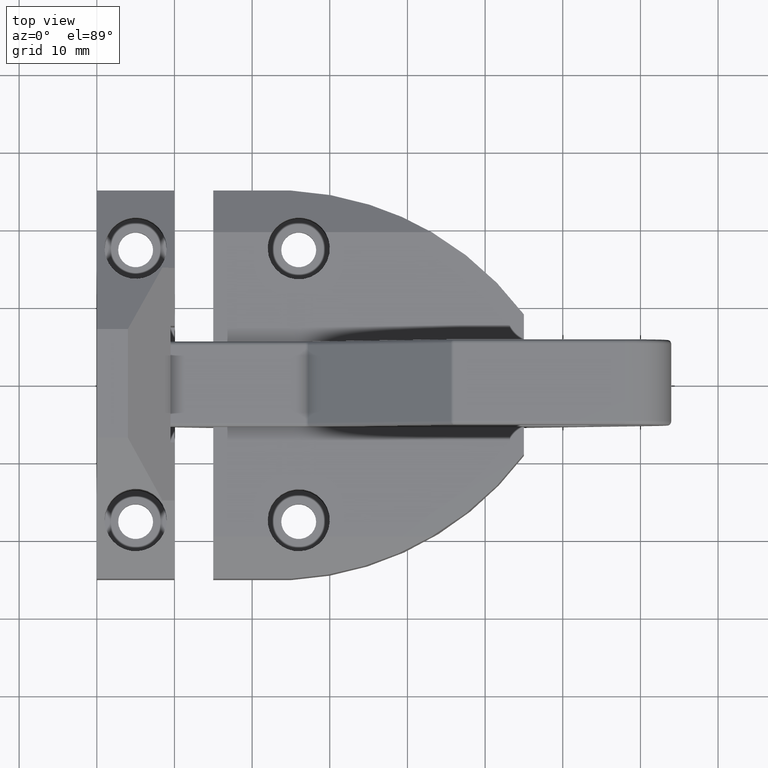
[diagram: clean part render]
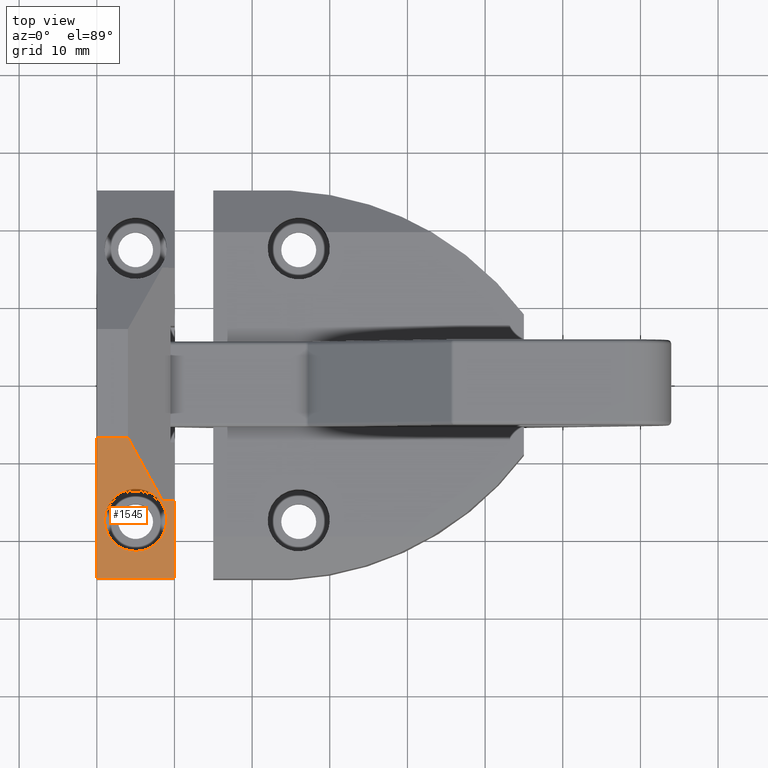
[diagram: same view with one face highlighted and labeled with its STEP entity id]
A machine part, top view. The second image highlights one B-rep face of the part: STEP entity #1545.
In plain terms, the highlighted planar face has unit normal (0, 0.4856, -0.8742).
Its self-contained STEP definition (entity closure, byte-faithful):
#34=FACE_BOUND('',#200,.T.);
#47=PLANE('',#1675);
#88=ELLIPSE('',#1661,4.57583561821645,4.);
#89=ELLIPSE('',#1662,4.57583561821645,4.);
#106=FACE_OUTER_BOUND('',#199,.T.);
#199=EDGE_LOOP('',(#1072,#1073,#1074,#1075,#1076,#1077));
#200=EDGE_LOOP('',(#1078,#1079));
#308=LINE('',#2424,#442);
#309=LINE('',#2427,#443);
#310=LINE('',#2429,#444);
#311=LINE('',#2431,#445);
#312=LINE('',#2433,#446);
#313=LINE('',#2434,#447);
#442=VECTOR('',#1903,1000.);
#443=VECTOR('',#1906,1000.);
#444=VECTOR('',#1907,1000.);
#445=VECTOR('',#1908,1000.);
#446=VECTOR('',#1909,1000.);
#447=VECTOR('',#1910,1000.);
#658=VERTEX_POINT('',#2381);
#659=VERTEX_POINT('',#2383);
#674=VERTEX_POINT('',#2420);
#675=VERTEX_POINT('',#2422);
#676=VERTEX_POINT('',#2426);
#677=VERTEX_POINT('',#2428);
#678=VERTEX_POINT('',#2430);
#679=VERTEX_POINT('',#2432);
#810=EDGE_CURVE('',#659,#658,#88,.T.);
#811=EDGE_CURVE('',#658,#659,#89,.T.);
#830=EDGE_CURVE('',#674,#675,#308,.T.);
#831=EDGE_CURVE('',#674,#676,#309,.T.);
#832=EDGE_CURVE('',#675,#677,#310,.T.);
#833=EDGE_CURVE('',#678,#677,#311,.T.);
#834=EDGE_CURVE('',#679,#678,#312,.T.);
#835=EDGE_CURVE('',#676,#679,#313,.T.);
#1072=ORIENTED_EDGE('',*,*,#831,.F.);
#1073=ORIENTED_EDGE('',*,*,#830,.T.);
#1074=ORIENTED_EDGE('',*,*,#832,.T.);
#1075=ORIENTED_EDGE('',*,*,#833,.F.);
#1076=ORIENTED_EDGE('',*,*,#834,.F.);
#1077=ORIENTED_EDGE('',*,*,#835,.F.);
#1078=ORIENTED_EDGE('',*,*,#810,.T.);
#1079=ORIENTED_EDGE('',*,*,#811,.T.);
#1545=ADVANCED_FACE('',(#106,#34),#47,.F.);
#1661=AXIS2_PLACEMENT_3D('',#2384,#1865,#1866);
#1662=AXIS2_PLACEMENT_3D('',#2385,#1867,#1868);
#1675=AXIS2_PLACEMENT_3D('',#2425,#1904,#1905);
#1865=DIRECTION('center_axis',(0.,0.485642931178632,-0.874157276121538));
#1866=DIRECTION('ref_axis',(6.69752673957913E-16,0.874157276121538,0.485642931178632));
#1867=DIRECTION('center_axis',(0.,0.485642931178632,-0.874157276121538));
#1868=DIRECTION('ref_axis',(6.69752673957913E-16,0.874157276121538,0.485642931178632));
#1903=DIRECTION('',(-1.,0.,0.));
#1904=DIRECTION('center_axis',(0.,0.485642931178632,-0.874157276121538));
#1905=DIRECTION('ref_axis',(0.,0.874157276121538,0.485642931178632));
#1906=DIRECTION('',(0.436852028330515,-0.786333650994936,-0.43685202833052));
#1907=DIRECTION('',(0.,-0.874157276121538,-0.485642931178632));
#1908=DIRECTION('',(-1.,0.,0.));
#1909=DIRECTION('',(0.,-0.874157276121538,-0.485642931178632));
#1910=DIRECTION('',(1.,0.,0.));
#2381=CARTESIAN_POINT('',(0.999999999999998,-17.5,14.1666666666667));
#2383=CARTESIAN_POINT('',(9.,-17.5,14.1666666666667));
#2384=CARTESIAN_POINT('Origin',(5.,-17.5,14.1666666666667));
#2385=CARTESIAN_POINT('Origin',(5.,-17.5,14.1666666666667));
#2420=CARTESIAN_POINT('',(4.00000000000007,-6.99999999999999,20.));
#2422=CARTESIAN_POINT('',(0.,-7.,20.));
#2424=CARTESIAN_POINT('',(10.,-7.,20.));
#2425=CARTESIAN_POINT('Origin',(10.,-7.,20.));
#2426=CARTESIAN_POINT('',(8.44444444444446,-15.,15.5555555555556));
#2427=CARTESIAN_POINT('',(5.14503816793897,-9.06106870229004,18.8549618320611));
#2428=CARTESIAN_POINT('',(0.,-25.,10.));
#2429=CARTESIAN_POINT('',(0.,-7.,20.));
#2430=CARTESIAN_POINT('',(10.,-25.,10.));
#2431=CARTESIAN_POINT('',(10.,-25.,10.));
#2432=CARTESIAN_POINT('',(10.,-15.,15.5555555555556));
#2433=CARTESIAN_POINT('',(10.,-7.,20.));
#2434=CARTESIAN_POINT('',(10.,-15.,15.5555555555556));